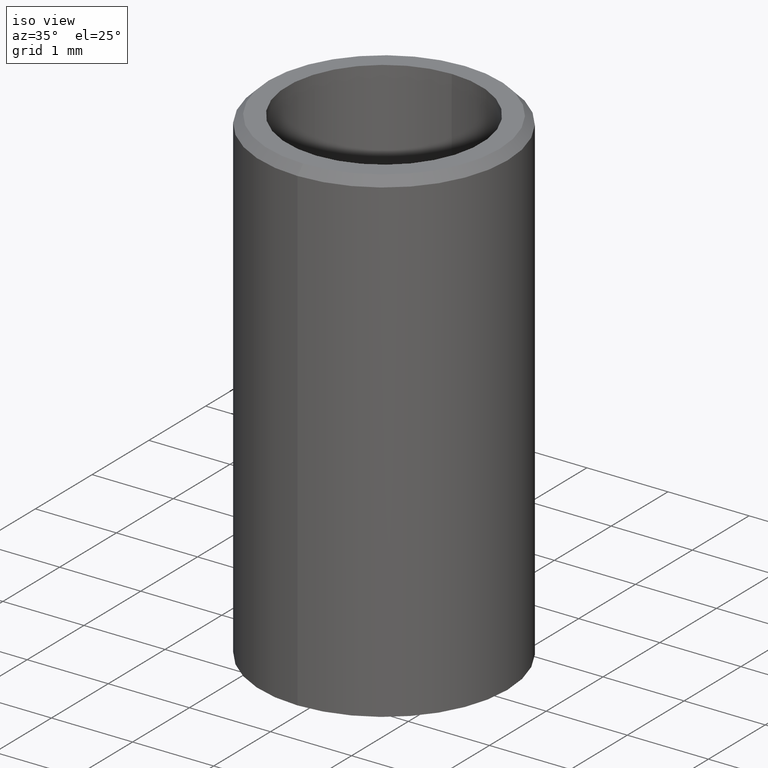
[diagram: clean part render]
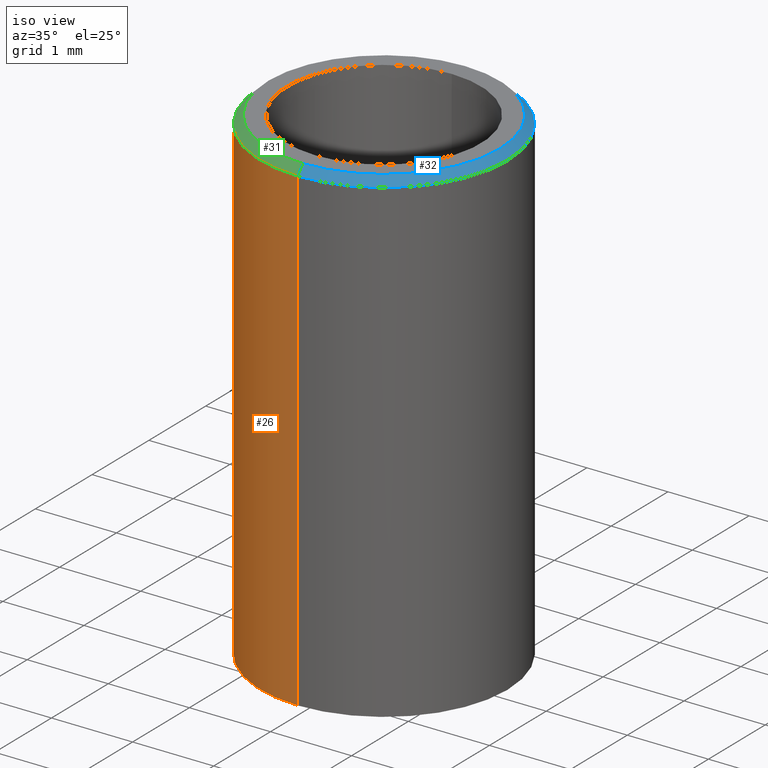
[diagram: same view with three faces highlighted in distinct colors, each labeled with its STEP entity id]
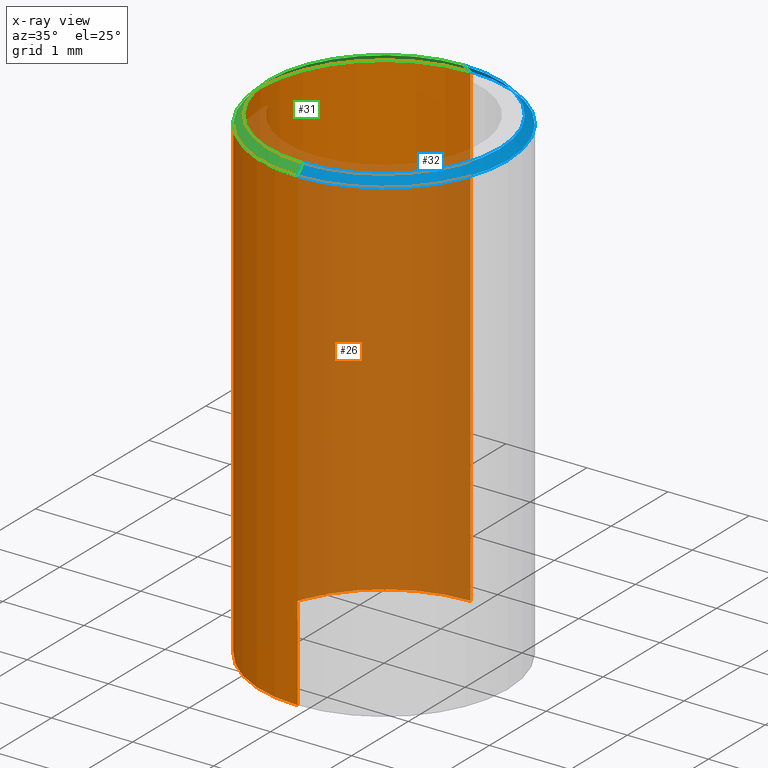
[diagram: x-ray of the same camera — body ghosted, the three highlighted faces saturated]
A machine part, iso view with three faces highlighted in distinct colors.
The next image is the same camera in x-ray (body ghosted, the three faces saturated) — at least one of them is partly hidden behind the body in this view.
Their STEP definitions:

[orange] entity #26 — the highlighted cylindrical surface (partial cylindrical patch) has radius 1.524 mm, axis along (0, 0, -1).
#26=ADVANCED_FACE('',(#34),#84,.T.);
#34=FACE_OUTER_BOUND('',#42,.F.);
#42=EDGE_LOOP('',(#55,#56,#57,#58));
#55=ORIENTED_EDGE('',*,*,#113,.T.);
#56=ORIENTED_EDGE('',*,*,#117,.F.);
#57=ORIENTED_EDGE('',*,*,#109,.T.);
#58=ORIENTED_EDGE('',*,*,#116,.T.);
#84=CYLINDRICAL_SURFACE('',#183,1.524);
#97=LINE('',#263,#103);
#98=LINE('',#264,#104);
#103=VECTOR('',#212,5.9);
#104=VECTOR('',#213,5.9);
#109=EDGE_CURVE('',#139,#140,#125,.T.);
#113=EDGE_CURVE('',#134,#133,#129,.T.);
#116=EDGE_CURVE('',#140,#134,#97,.T.);
#117=EDGE_CURVE('',#139,#133,#98,.T.);
#125=CIRCLE('',#174,1.524);
#129=CIRCLE('',#178,1.524);
#133=VERTEX_POINT('',#244);
#134=VERTEX_POINT('',#245);
#139=VERTEX_POINT('',#250);
#140=VERTEX_POINT('',#251);
#174=AXIS2_PLACEMENT_3D('',#256,#200,#201);
#178=AXIS2_PLACEMENT_3D('',#260,#208,#209);
#183=AXIS2_PLACEMENT_3D('',#271,#224,#225);
#200=DIRECTION('',(0.,0.,1.));
#201=DIRECTION('',(0.,1.,0.));
#208=DIRECTION('',(0.,0.,-1.));
#209=DIRECTION('',(0.,-1.,0.));
#212=DIRECTION('',(0.,0.,-1.));
#213=DIRECTION('',(0.,0.,-1.));
#224=DIRECTION('',(0.,0.,-1.));
#225=DIRECTION('',(0.,-1.,0.));
#244=CARTESIAN_POINT('',(0.,1.524,-6.));
#245=CARTESIAN_POINT('',(0.,-1.524,-6.));
#250=CARTESIAN_POINT('',(0.,1.524,-0.1));
#251=CARTESIAN_POINT('',(0.,-1.524,-0.1));
#256=CARTESIAN_POINT('',(0.,0.,-0.1));
#260=CARTESIAN_POINT('',(0.,0.,-6.));
#263=CARTESIAN_POINT('',(0.,-1.524,-0.1));
#264=CARTESIAN_POINT('',(0.,1.524,-0.1));
#271=CARTESIAN_POINT('',(0.,0.,0.));

[blue] entity #32 — the highlighted conical surface has half-angle 45 deg.
#20=CONICAL_SURFACE('',#189,1.424,0.785398163397447);
#32=ADVANCED_FACE('',(#40),#20,.T.);
#40=FACE_OUTER_BOUND('',#50,.F.);
#50=EDGE_LOOP('',(#79,#80,#81,#82));
#79=ORIENTED_EDGE('',*,*,#121,.F.);
#80=ORIENTED_EDGE('',*,*,#108,.F.);
#81=ORIENTED_EDGE('',*,*,#122,.T.);
#82=ORIENTED_EDGE('',*,*,#107,.T.);
#99=LINE('',#268,#105);
#100=LINE('',#269,#106);
#105=VECTOR('',#220,0.141421356237309);
#106=VECTOR('',#221,0.141421356237309);
#107=EDGE_CURVE('',#142,#141,#123,.T.);
#108=EDGE_CURVE('',#140,#139,#124,.T.);
#121=EDGE_CURVE('',#139,#141,#99,.T.);
#122=EDGE_CURVE('',#140,#142,#100,.T.);
#123=CIRCLE('',#172,1.424);
#124=CIRCLE('',#173,1.524);
#139=VERTEX_POINT('',#250);
#140=VERTEX_POINT('',#251);
#141=VERTEX_POINT('',#252);
#142=VERTEX_POINT('',#253);
#172=AXIS2_PLACEMENT_3D('',#254,#196,#197);
#173=AXIS2_PLACEMENT_3D('',#255,#198,#199);
#189=AXIS2_PLACEMENT_3D('',#277,#237,#236);
#196=DIRECTION('',(0.,0.,1.));
#197=DIRECTION('',(0.,-1.,0.));
#198=DIRECTION('',(0.,0.,1.));
#199=DIRECTION('',(0.,-1.,0.));
#220=DIRECTION('',(0.,-0.707106781186547,0.707106781186548));
#221=DIRECTION('',(0.,0.707106781186549,0.707106781186546));
#236=DIRECTION('',(0.,-1.,0.));
#237=DIRECTION('',(0.,0.,-1.));
#250=CARTESIAN_POINT('',(0.,1.524,-0.1));
#251=CARTESIAN_POINT('',(0.,-1.524,-0.1));
#252=CARTESIAN_POINT('',(0.,1.424,0.));
#253=CARTESIAN_POINT('',(0.,-1.424,0.));
#254=CARTESIAN_POINT('',(0.,0.,0.));
#255=CARTESIAN_POINT('',(0.,0.,-0.1));
#268=CARTESIAN_POINT('',(0.,1.524,-0.1));
#269=CARTESIAN_POINT('',(0.,-1.524,-0.1));
#277=CARTESIAN_POINT('',(0.,0.,0.));

[green] entity #31 — the highlighted conical surface has half-angle 45 deg.
#19=CONICAL_SURFACE('',#188,1.424,0.785398163397445);
#31=ADVANCED_FACE('',(#39),#19,.T.);
#39=FACE_OUTER_BOUND('',#49,.F.);
#49=EDGE_LOOP('',(#75,#76,#77,#78));
#75=ORIENTED_EDGE('',*,*,#122,.F.);
#76=ORIENTED_EDGE('',*,*,#109,.F.);
#77=ORIENTED_EDGE('',*,*,#121,.T.);
#78=ORIENTED_EDGE('',*,*,#110,.T.);
#99=LINE('',#268,#105);
#100=LINE('',#269,#106);
#105=VECTOR('',#220,0.141421356237309);
#106=VECTOR('',#221,0.141421356237309);
#109=EDGE_CURVE('',#139,#140,#125,.T.);
#110=EDGE_CURVE('',#141,#142,#126,.T.);
#121=EDGE_CURVE('',#139,#141,#99,.T.);
#122=EDGE_CURVE('',#140,#142,#100,.T.);
#125=CIRCLE('',#174,1.524);
#126=CIRCLE('',#175,1.424);
#139=VERTEX_POINT('',#250);
#140=VERTEX_POINT('',#251);
#141=VERTEX_POINT('',#252);
#142=VERTEX_POINT('',#253);
#174=AXIS2_PLACEMENT_3D('',#256,#200,#201);
#175=AXIS2_PLACEMENT_3D('',#257,#202,#203);
#188=AXIS2_PLACEMENT_3D('',#276,#235,#234);
#200=DIRECTION('',(0.,0.,1.));
#201=DIRECTION('',(0.,1.,0.));
#202=DIRECTION('',(0.,0.,1.));
#203=DIRECTION('',(0.,1.,0.));
#220=DIRECTION('',(0.,-0.707106781186547,0.707106781186548));
#221=DIRECTION('',(0.,0.707106781186549,0.707106781186546));
#234=DIRECTION('',(0.,1.,0.));
#235=DIRECTION('',(0.,0.,-1.));
#250=CARTESIAN_POINT('',(0.,1.524,-0.1));
#251=CARTESIAN_POINT('',(0.,-1.524,-0.1));
#252=CARTESIAN_POINT('',(0.,1.424,0.));
#253=CARTESIAN_POINT('',(0.,-1.424,0.));
#256=CARTESIAN_POINT('',(0.,0.,-0.1));
#257=CARTESIAN_POINT('',(0.,0.,0.));
#268=CARTESIAN_POINT('',(0.,1.524,-0.1));
#269=CARTESIAN_POINT('',(0.,-1.524,-0.1));
#276=CARTESIAN_POINT('',(0.,0.,0.));